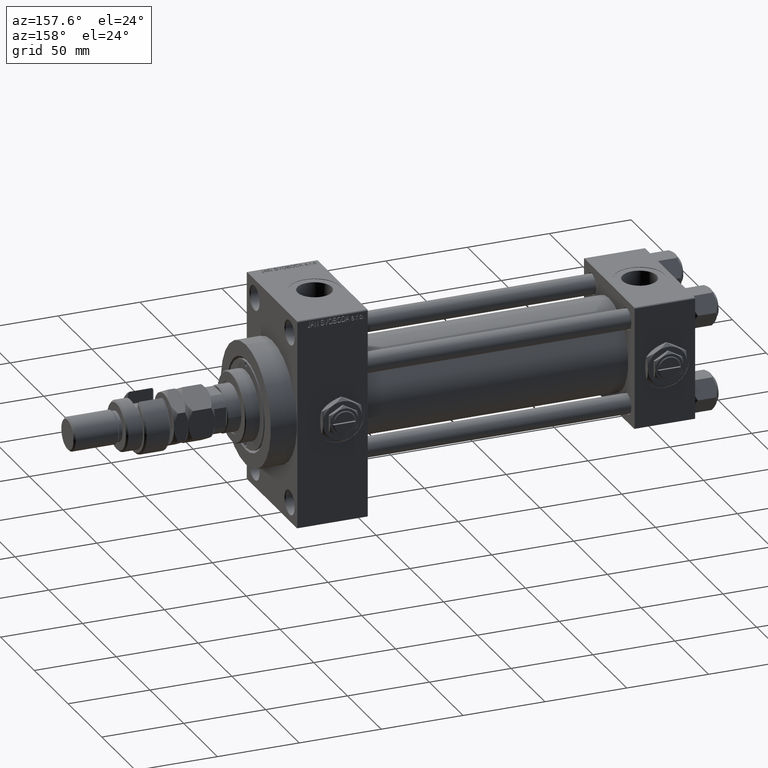
[diagram: clean part render]
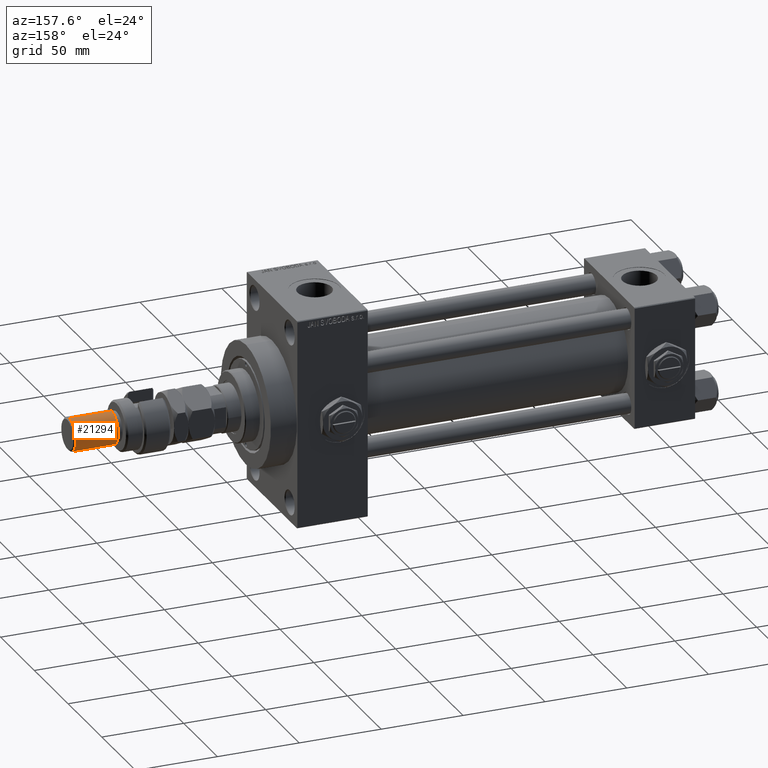
[diagram: same view with one face highlighted and labeled with its STEP entity id]
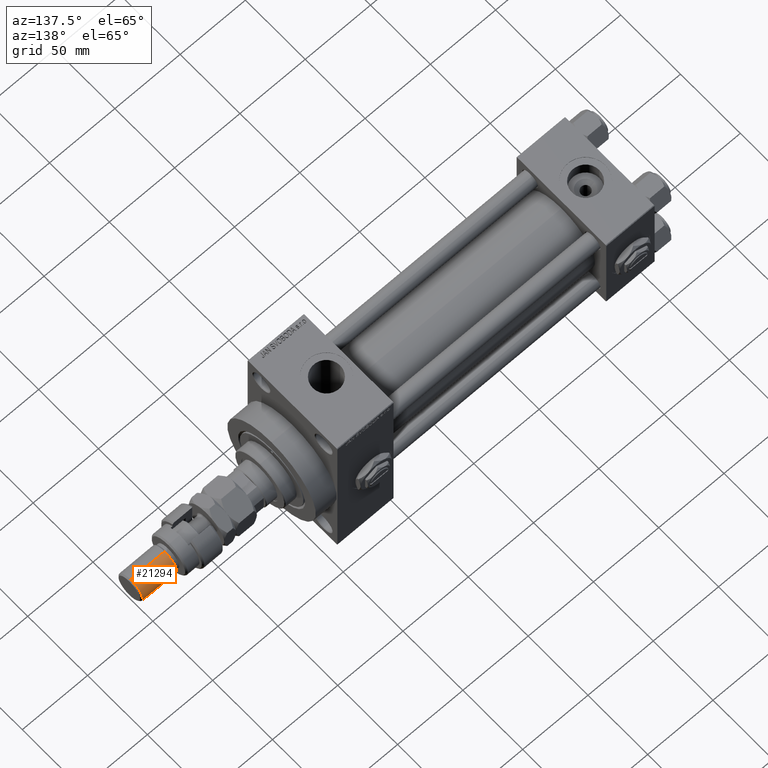
[diagram: same view with one face highlighted and labeled with its STEP entity id]
A machine part, auxiliary view. The second image highlights one B-rep face of the part: STEP entity #21294.
A second angle (auxiliary view) of the same face is appended — the face is thin or edge-on in the first view.
In plain terms, the highlighted cylindrical surface (edge-blend (fillet) strip) has radius 10 mm, axis along (-1, -0, 0).
Its self-contained STEP definition (entity closure, byte-faithful):
#2252 = CARTESIAN_POINT ( 'NONE',  ( 0.000000000000000000, 0.000000000000000000, 56.00000000000000711 ) ) ;
#3422 = VERTEX_POINT ( 'NONE', #4834 ) ;
#3827 = EDGE_CURVE ( 'NONE', #3422, #25405, #4257, .T. ) ;
#3929 = EDGE_CURVE ( 'NONE', #16589, #13018, #14231, .T. ) ;
#4257 = LINE ( 'NONE', #16943, #9498 ) ;
#4834 = CARTESIAN_POINT ( 'NONE',  ( -10.00000000000000000, 0.000000000000000000, 54.99999999999998579 ) ) ;
#5532 = EDGE_CURVE ( 'NONE', #13018, #25405, #24280, .T. ) ;
#7039 = DIRECTION ( 'NONE',  ( 0.000000000000000000, 0.000000000000000000, -1.000000000000000000 ) ) ;
#8645 = ORIENTED_EDGE ( 'NONE', *, *, #3929, .T. ) ;
#9498 = VECTOR ( 'NONE', #45015, 1000.000000000000000 ) ;
#9978 = CARTESIAN_POINT ( 'NONE',  ( 0.000000000000000000, 0.000000000000000000, 54.99999999999998579 ) ) ;
#12630 = ORIENTED_EDGE ( 'NONE', *, *, #23194, .T. ) ;
#13018 = VERTEX_POINT ( 'NONE', #26644 ) ;
#14231 = LINE ( 'NONE', #51011, #21085 ) ;
#16589 = VERTEX_POINT ( 'NONE', #37015 ) ;
#16943 = CARTESIAN_POINT ( 'NONE',  ( -10.00000000000000000, 0.000000000000000000, 56.00000000000000711 ) ) ;
#17604 = DIRECTION ( 'NONE',  ( -0.000000000000000000, -0.000000000000000000, -1.000000000000000000 ) ) ;
#18698 = DIRECTION ( 'NONE',  ( 1.000000000000000000, 0.000000000000000000, 0.000000000000000000 ) ) ;
#19679 = AXIS2_PLACEMENT_3D ( 'NONE', #9978, #7039, #18698 ) ;
#20202 = CARTESIAN_POINT ( 'NONE',  ( -10.00000000000000000, 0.000000000000000000, 29.00000000000000711 ) ) ;
#20439 = AXIS2_PLACEMENT_3D ( 'NONE', #2252, #17604, #26584 ) ;
#21085 = VECTOR ( 'NONE', #26905, 1000.000000000000000 ) ;
#21294 = ADVANCED_FACE ( 'NONE', ( #21577 ), #21838, .T. ) ;
#21577 = FACE_OUTER_BOUND ( 'NONE', #28371, .T. ) ;
#21838 = CYLINDRICAL_SURFACE ( 'NONE', #20439, 10.00000000000000000 ) ;
#23194 = EDGE_CURVE ( 'NONE', #3422, #16589, #34880, .T. ) ;
#24280 = CIRCLE ( 'NONE', #37825, 10.00000000000000000 ) ;
#25405 = VERTEX_POINT ( 'NONE', #20202 ) ;
#26543 = DIRECTION ( 'NONE',  ( -0.000000000000000000, -0.000000000000000000, 1.000000000000000000 ) ) ;
#26584 = DIRECTION ( 'NONE',  ( -1.000000000000000000, 0.000000000000000000, 0.000000000000000000 ) ) ;
#26644 = CARTESIAN_POINT ( 'NONE',  ( 10.00000000000000000, 1.224646799147353256E-15, 29.00000000000000711 ) ) ;
#26905 = DIRECTION ( 'NONE',  ( -0.000000000000000000, -0.000000000000000000, -1.000000000000000000 ) ) ;
#28371 = EDGE_LOOP ( 'NONE', ( #12630, #8645, #42579, #52332 ) ) ;
#34880 = CIRCLE ( 'NONE', #19679, 10.00000000000000000 ) ;
#37015 = CARTESIAN_POINT ( 'NONE',  ( 10.00000000000000000, 1.224646799147353256E-15, 54.99999999999998579 ) ) ;
#37825 = AXIS2_PLACEMENT_3D ( 'NONE', #42959, #26543, #45876 ) ;
#42579 = ORIENTED_EDGE ( 'NONE', *, *, #5532, .T. ) ;
#42959 = CARTESIAN_POINT ( 'NONE',  ( 0.000000000000000000, 0.000000000000000000, 29.00000000000000711 ) ) ;
#45015 = DIRECTION ( 'NONE',  ( -0.000000000000000000, -0.000000000000000000, -1.000000000000000000 ) ) ;
#45876 = DIRECTION ( 'NONE',  ( 1.000000000000000000, 0.000000000000000000, 0.000000000000000000 ) ) ;
#51011 = CARTESIAN_POINT ( 'NONE',  ( 10.00000000000000000, 1.224646799147353256E-15, 56.00000000000000711 ) ) ;
#52332 = ORIENTED_EDGE ( 'NONE', *, *, #3827, .F. ) ;